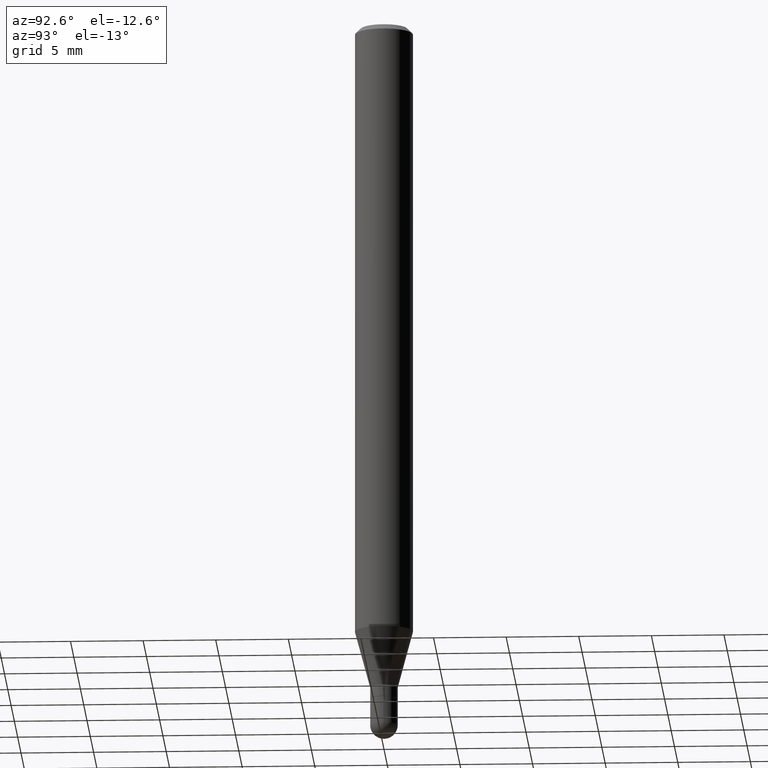
[diagram: clean part render]
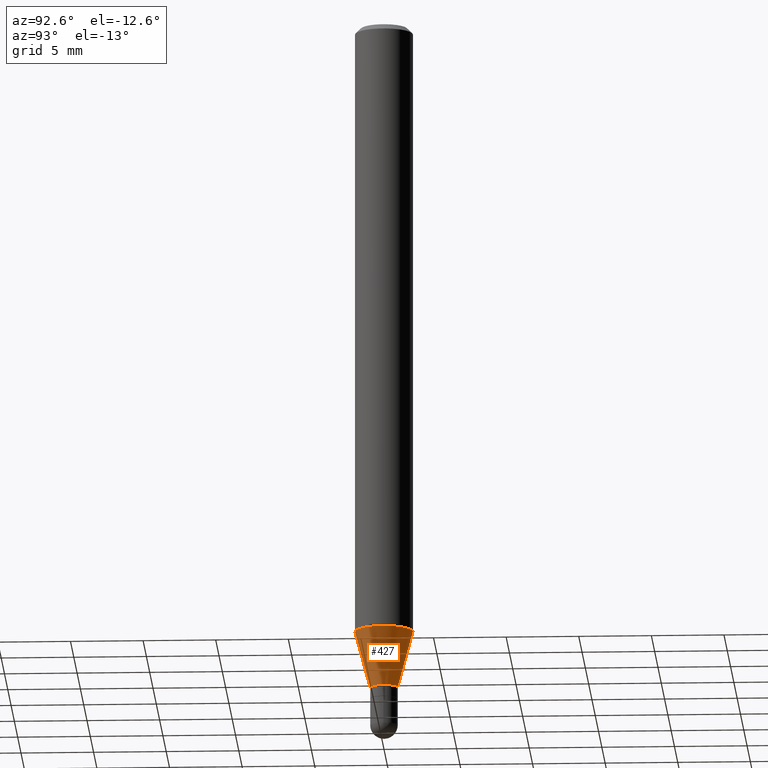
[diagram: same view with one face highlighted and labeled with its STEP entity id]
A machine part, auxiliary view. The second image highlights one B-rep face of the part: STEP entity #427.
In plain terms, the highlighted conical surface has half-angle 15 deg.
Its self-contained STEP definition (entity closure, byte-faithful):
#31 = CARTESIAN_POINT ( 'NONE',  ( 5.595524044111194280E-16, 0.07874999999999411637, -1.672179699107027684 ) ) ;
#100 = VERTEX_POINT ( 'NONE', #458 ) ;
#114 = AXIS2_PLACEMENT_3D ( 'NONE', #168, #239, #413 ) ;
#115 = AXIS2_PLACEMENT_3D ( 'NONE', #305, #152, #117 ) ;
#117 = DIRECTION ( 'NONE',  ( -6.982962677686265133E-15, -1.000000000000000000, 0.000000000000000000 ) ) ;
#142 = VERTEX_POINT ( 'NONE', #148 ) ;
#148 = CARTESIAN_POINT ( 'NONE',  ( -2.611628041454210900E-16, -0.03740000000000629626, -1.826500000000000012 ) ) ;
#152 = DIRECTION ( 'NONE',  ( -2.445444900706578413E-29, 3.491515572849055955E-15, 1.000000000000000000 ) ) ;
#158 = LINE ( 'NONE', #435, #192 ) ;
#168 = CARTESIAN_POINT ( 'NONE',  ( 4.089223318246340939E-29, -5.838441460034234985E-15, -1.672179699107027462 ) ) ;
#172 = LINE ( 'NONE', #377, #437 ) ;
#192 = VECTOR ( 'NONE', #311, 39.37007874015748143 ) ;
#206 = EDGE_LOOP ( 'NONE', ( #257, #292, #485, #503 ) ) ;
#215 = EDGE_CURVE ( 'NONE', #142, #100, #267, .T. ) ;
#232 = CARTESIAN_POINT ( 'NONE',  ( -5.499083108677527193E-16, -0.07875000000000587086, -1.672179699107027018 ) ) ;
#239 = DIRECTION ( 'NONE',  ( -2.445444900706578413E-29, 3.491515572849055955E-15, 1.000000000000000000 ) ) ;
#257 = ORIENTED_EDGE ( 'NONE', *, *, #215, .T. ) ;
#259 = CONICAL_SURFACE ( 'NONE', #115, 0.03739999999999991942, 0.2617993877991505736 ) ;
#267 = CIRCLE ( 'NONE', #450, 0.03739999999999991942 ) ;
#271 = CIRCLE ( 'NONE', #114, 0.07875000000000000056 ) ;
#272 = EDGE_CURVE ( 'NONE', #495, #462, #271, .T. ) ;
#285 = DIRECTION ( 'NONE',  ( -2.445444900706578413E-29, 3.491515572849055955E-15, 1.000000000000000000 ) ) ;
#290 = DIRECTION ( 'NONE',  ( -1.807323732225332111E-15, -0.2588190451025184635, 0.9659258262890689783 ) ) ;
#292 = ORIENTED_EDGE ( 'NONE', *, *, #484, .T. ) ;
#305 = CARTESIAN_POINT ( 'NONE',  ( 4.466605111140565773E-29, -6.377253193808800564E-15, -1.826500000000000012 ) ) ;
#311 = DIRECTION ( 'NONE',  ( 1.839019923739602287E-15, 0.2588190451025252359, 0.9659258262890670910 ) ) ;
#374 = CARTESIAN_POINT ( 'NONE',  ( 4.466605111140565773E-29, -6.377253193808800564E-15, -1.826500000000000012 ) ) ;
#377 = CARTESIAN_POINT ( 'NONE',  ( -2.611628041454210900E-16, -0.03740000000000629626, -1.826500000000000012 ) ) ;
#390 = FACE_OUTER_BOUND ( 'NONE', #206, .T. ) ;
#398 = EDGE_CURVE ( 'NONE', #142, #495, #172, .T. ) ;
#413 = DIRECTION ( 'NONE',  ( -6.982962677686264344E-15, -1.000000000000000000, 3.469013325287953293E-15 ) ) ;
#427 = ADVANCED_FACE ( 'NONE', ( #390 ), #259, .T. ) ;
#435 = CARTESIAN_POINT ( 'NONE',  ( 2.657429831743215169E-16, 0.03739999999999354258, -1.826500000000000012 ) ) ;
#437 = VECTOR ( 'NONE', #290, 39.37007874015748854 ) ;
#450 = AXIS2_PLACEMENT_3D ( 'NONE', #374, #285, #452 ) ;
#452 = DIRECTION ( 'NONE',  ( -6.982962677686265133E-15, -1.000000000000000000, 0.000000000000000000 ) ) ;
#458 = CARTESIAN_POINT ( 'NONE',  ( 4.126476937927206450E-16, 0.03739999999999354258, -1.826500000000000012 ) ) ;
#462 = VERTEX_POINT ( 'NONE', #31 ) ;
#484 = EDGE_CURVE ( 'NONE', #100, #462, #158, .T. ) ;
#485 = ORIENTED_EDGE ( 'NONE', *, *, #272, .F. ) ;
#495 = VERTEX_POINT ( 'NONE', #232 ) ;
#503 = ORIENTED_EDGE ( 'NONE', *, *, #398, .F. ) ;